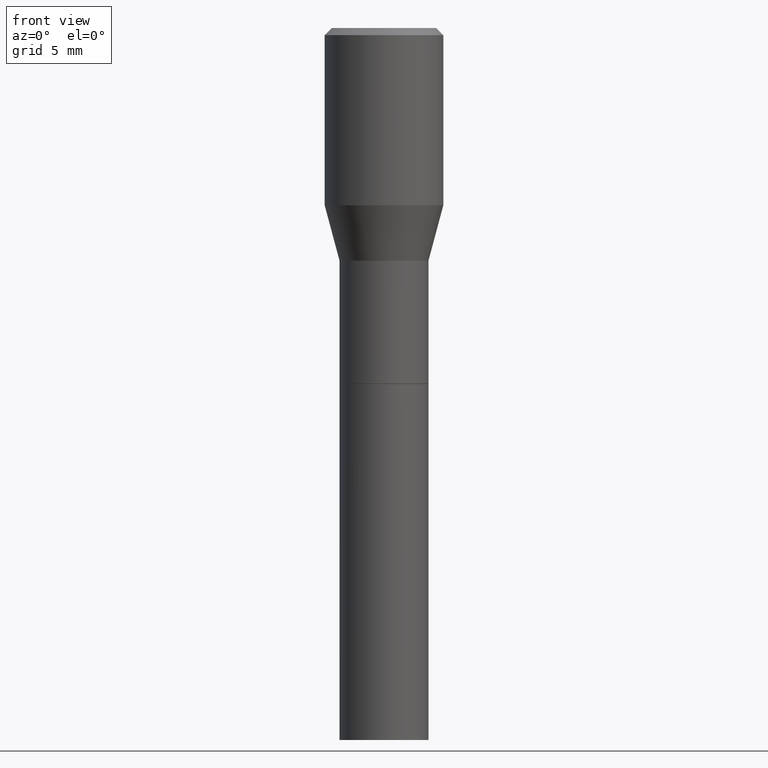
[diagram: clean part render]
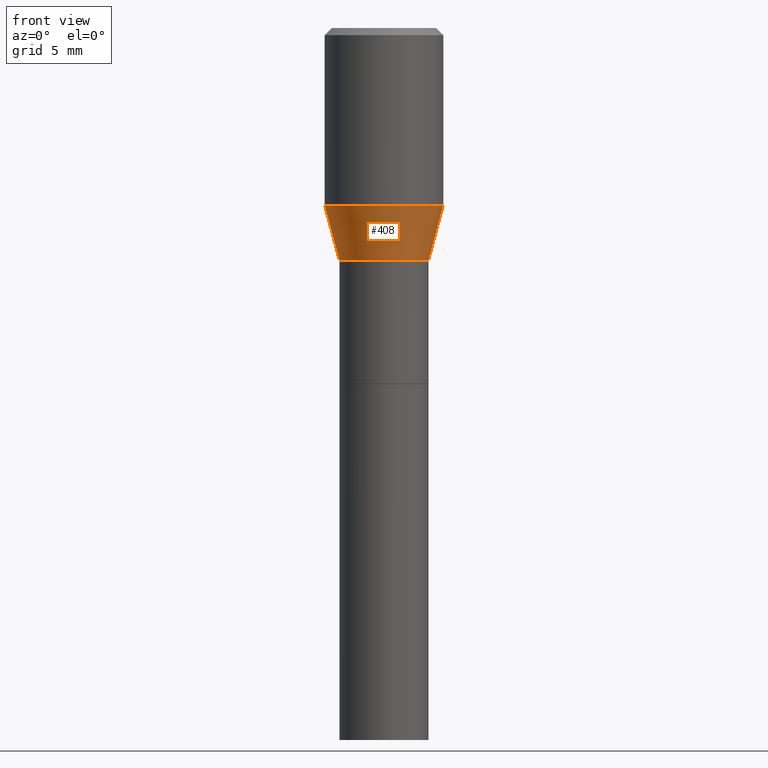
[diagram: same view with one face highlighted and labeled with its STEP entity id]
A machine part, front view. The second image highlights one B-rep face of the part: STEP entity #408.
In plain terms, the highlighted conical surface has half-angle 15 deg.
Its self-contained STEP definition (entity closure, byte-faithful):
#6 = EDGE_CURVE ( 'NONE', #287, #294, #292, .T. ) ;
#7 = DIRECTION ( 'NONE',  ( 0.2588190451025213501, 1.565188264969621968E-15, 0.9659258262890682012 ) ) ;
#8 = FACE_OUTER_BOUND ( 'NONE', #249, .T. ) ;
#16 = CARTESIAN_POINT ( 'NONE',  ( 9.130730327492267337E-30, -1.303626301338105429E-15, -0.3733734122634732588 ) ) ;
#27 = DIRECTION ( 'NONE',  ( 1.000000000000000000, -6.982962677686266711E-15, 0.000000000000000000 ) ) ;
#29 = CARTESIAN_POINT ( 'NONE',  ( -0.09375000000000005551, -1.044692041258047415E-15, -0.4900000000000001577 ) ) ;
#42 = DIRECTION ( 'NONE',  ( 1.000000000000000000, -6.982962677686269077E-15, 0.000000000000000000 ) ) ;
#63 = LINE ( 'NONE', #29, #366 ) ;
#72 = AXIS2_PLACEMENT_3D ( 'NONE', #418, #463, #356 ) ;
#113 = CARTESIAN_POINT ( 'NONE',  ( -0.09375000000000005551, -7.300699614480138057E-16, -0.4900000000000001577 ) ) ;
#114 = ORIENTED_EDGE ( 'NONE', *, *, #224, .T. ) ;
#132 = VECTOR ( 'NONE', #7, 39.37007874015747433 ) ;
#147 = CARTESIAN_POINT ( 'NONE',  ( 0.09375000000000005551, -2.365478607066230027E-15, -0.4900000000000001577 ) ) ;
#148 = DIRECTION ( 'NONE',  ( -2.445468806185136597E-29, 3.491481338843145583E-15, 1.000000000000000000 ) ) ;
#189 = CARTESIAN_POINT ( 'NONE',  ( 0.09375000000000005551, -2.365478607066230027E-15, -0.4900000000000001577 ) ) ;
#195 = EDGE_CURVE ( 'NONE', #357, #287, #63, .T. ) ;
#221 = ORIENTED_EDGE ( 'NONE', *, *, #423, .T. ) ;
#224 = EDGE_CURVE ( 'NONE', #357, #426, #268, .T. ) ;
#249 = EDGE_LOOP ( 'NONE', ( #256, #114, #221, #345 ) ) ;
#256 = ORIENTED_EDGE ( 'NONE', *, *, #195, .F. ) ;
#268 = CIRCLE ( 'NONE', #72, 0.09375000000000005551 ) ;
#287 = VERTEX_POINT ( 'NONE', #433 ) ;
#292 = CIRCLE ( 'NONE', #465, 0.1250000000000000000 ) ;
#294 = VERTEX_POINT ( 'NONE', #331 ) ;
#331 = CARTESIAN_POINT ( 'NONE',  ( 0.1250000000000000000, -2.176496636048888767E-15, -0.3733734122634732588 ) ) ;
#345 = ORIENTED_EDGE ( 'NONE', *, *, #6, .F. ) ;
#350 = DIRECTION ( 'NONE',  ( -2.445468806185136597E-29, 3.491481338843145583E-15, 1.000000000000000000 ) ) ;
#356 = DIRECTION ( 'NONE',  ( 1.000000000000000000, -6.982962677686269077E-15, 0.000000000000000000 ) ) ;
#357 = VERTEX_POINT ( 'NONE', #113 ) ;
#366 = VECTOR ( 'NONE', #390, 39.37007874015747433 ) ;
#390 = DIRECTION ( 'NONE',  ( -0.2588190451025213501, 5.211531920934551042E-15, 0.9659258262890682012 ) ) ;
#395 = LINE ( 'NONE', #189, #132 ) ;
#404 = CARTESIAN_POINT ( 'NONE',  ( 1.198279715030717314E-29, -1.710825856033141931E-15, -0.4900000000000001577 ) ) ;
#408 = ADVANCED_FACE ( 'NONE', ( #8 ), #460, .T. ) ;
#418 = CARTESIAN_POINT ( 'NONE',  ( 1.198279715030717314E-29, -1.710825856033141931E-15, -0.4900000000000001577 ) ) ;
#423 = EDGE_CURVE ( 'NONE', #426, #294, #395, .T. ) ;
#426 = VERTEX_POINT ( 'NONE', #147 ) ;
#431 = AXIS2_PLACEMENT_3D ( 'NONE', #404, #148, #42 ) ;
#433 = CARTESIAN_POINT ( 'NONE',  ( -0.1250000000000000000, -4.154478816379799005E-16, -0.3733734122634732588 ) ) ;
#460 = CONICAL_SURFACE ( 'NONE', #431, 0.09375000000000005551, 0.2617993877991500740 ) ;
#463 = DIRECTION ( 'NONE',  ( -2.445468806185136597E-29, 3.491481338843145583E-15, 1.000000000000000000 ) ) ;
#465 = AXIS2_PLACEMENT_3D ( 'NONE', #16, #350, #27 ) ;